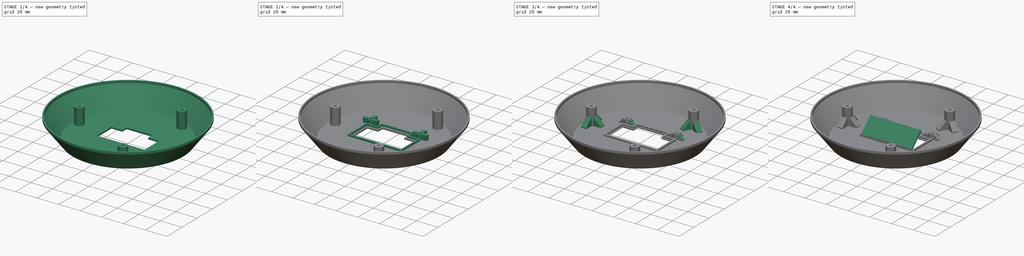
[diagram: build sequence overview — one tinted view per stage of 4, left to right]
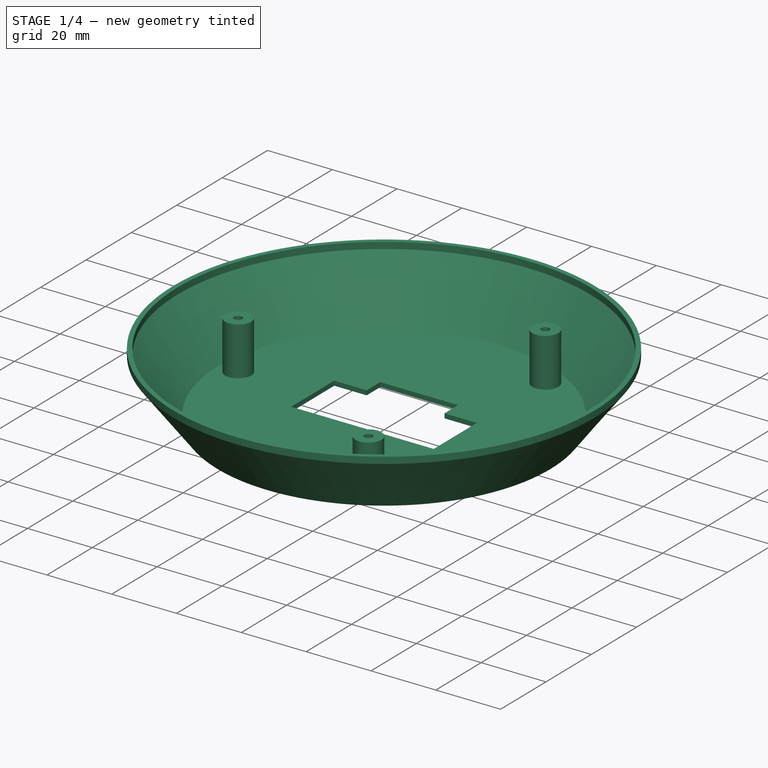
[diagram: stage 1 of 4 — iso view after this stage's code; geometry added in this stage tinted green]
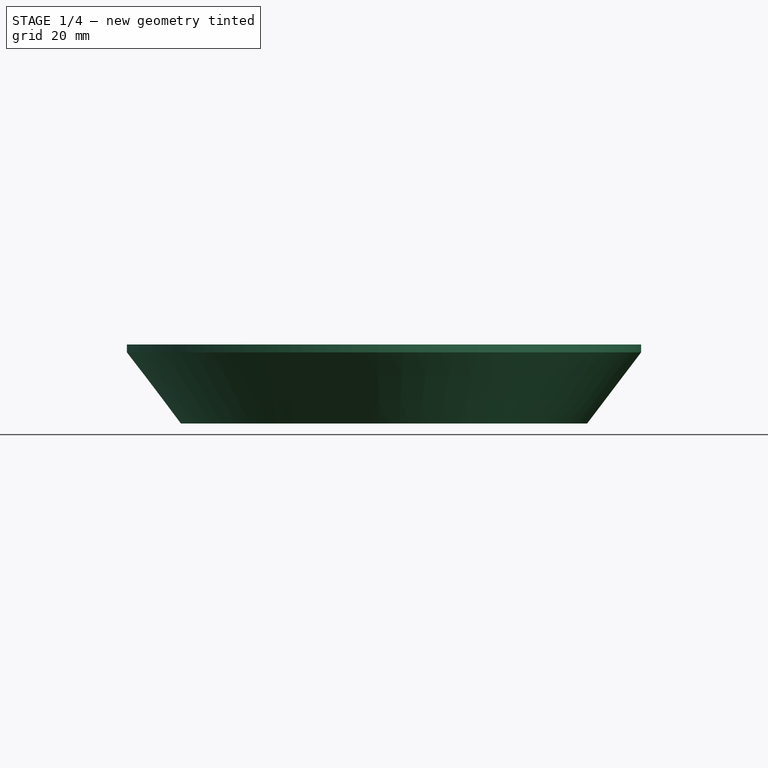
[diagram: stage 1 of 4 — front view after this stage's code; geometry added in this stage tinted green]
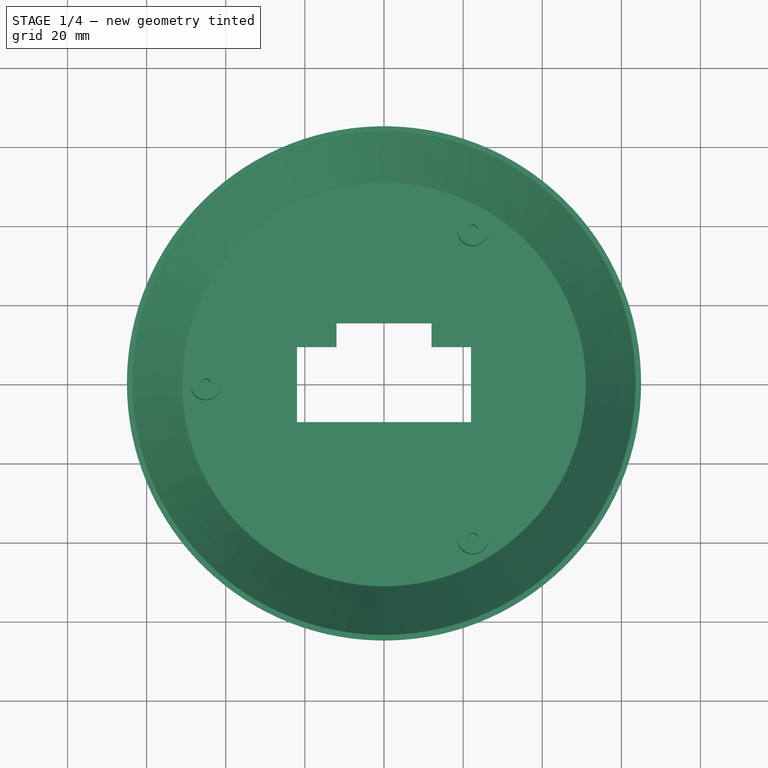
[diagram: stage 1 of 4 — top view after this stage's code; geometry added in this stage tinted green]
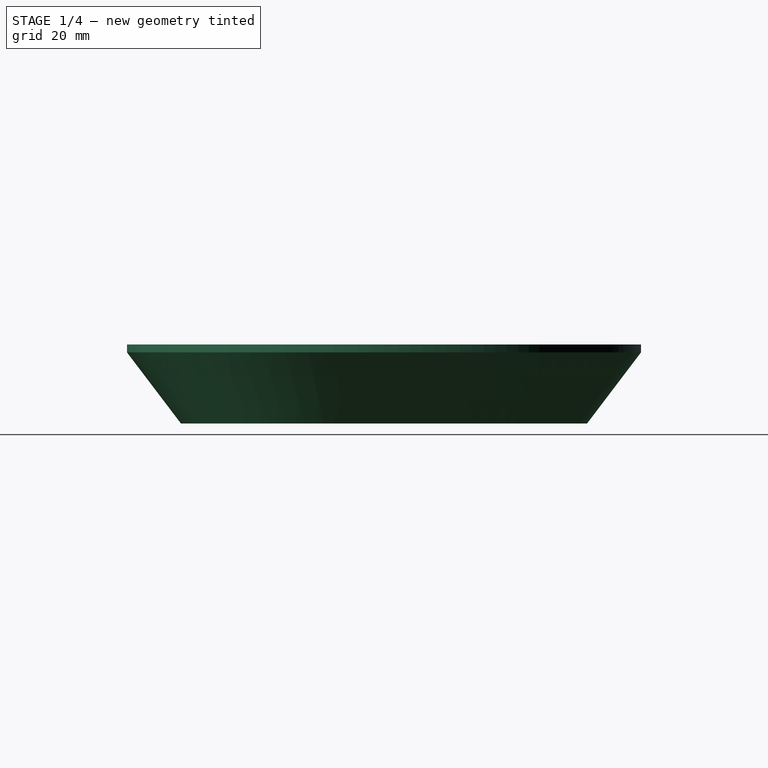
[diagram: stage 1 of 4 — right view after this stage's code; geometry added in this stage tinted green]
FCSTD DOCUMENT  (FreeCAD 0.19R24267 +148 (Git))
Label: Stevenson_screen_v2_top
License: All rights reserved
LicenseURL: http://en.wikipedia.org/wiki/All_rights_reserved
objects: Sketcher::SketchObject×8, PartDesign::Pad×6, PartDesign::Chamfer×5, PartDesign::Revolution×1, PartDesign::Pocket×1, PartDesign::Body×1
note: 35 computed .brp shape members not serialized (recipe doc carries the construction recipe); baked Part::Feature solids carry a one-line shape summary decoded from their .brp

FEATURE [Sketcher::SketchObject] Sketch
  FullyConstrained = true
  MapMode = 5
  Placement = pos=(0,0,0) rot=(1,0,0;1.5708rad)
  Support = -> [XZ_Plane]
  sketch-geometry (9):
    g0: LineSegment StartX=0 StartY=0 StartZ=0 EndX=51.3373 EndY=0 EndZ=0
    g1: LineSegment StartX=51.3373 StartY=0 StartZ=0 EndX=65 EndY=18 EndZ=0
    g2: LineSegment StartX=65 StartY=18 StartZ=0 EndX=65 EndY=20 EndZ=0
    g3: LineSegment StartX=65 StartY=20 StartZ=0 EndX=63.6 EndY=20 EndZ=0
    g4: LineSegment StartX=63.6 StartY=20 StartZ=0 EndX=63.6 EndY=18 EndZ=0
    g5: LineSegment StartX=63.6 StartY=18 StartZ=0 EndX=51 EndY=1.4 EndZ=0
    g6: LineSegment StartX=51 StartY=1.4 StartZ=0 EndX=0 EndY=1.4 EndZ=0
    g7: LineSegment StartX=0 StartY=1.4 StartZ=0 EndX=0 EndY=0 EndZ=0
    g8: LineSegment StartX=63.6 StartY=18 StartZ=0 EndX=65 EndY=18 EndZ=0
  constraints (25):
    c: Coincident(g0,g-1)
    c: Horizontal(g0)
    c: Coincident(g1,g0)
    c: Coincident(g2,g1)
    c: Vertical(g2)
    c: Coincident(g3,g2)
    c: Horizontal(g3)
    c: Coincident(g4,g3)
    c: Vertical(g4)
    c: Coincident(g5,g4)
    c: Coincident(g6,g5)
    c: PointOnObject(g6,g-2)
    c: Horizontal(g6)
    c: Coincident(g7,g6)
    c: Coincident(g7,g0)
    c: DistanceX(g6,g2) = 65
    c: DistanceY(g7,g7) = 1.4
    c: Equal(g3,g7)
    c: Parallel(g5,g1)
    c: DistanceY(g0,g2) = 20
    c: DistanceY(g2,g2) = 2
    c: Coincident(g8,g4)
    c: Coincident(g8,g1)
    c: Horizontal(g8)
    c: DistanceX(g6,g6) = 51
FEATURE [PartDesign::Revolution] Revolution
  Angle = 360
  Axis = (0,-2e-16,1)
  Base = (0,0,0)
  Placement = pos=(0,0,0) rot=(1,0,0;1.5708rad)
  Profile = -> Sketch
  ReferenceAxis = -> Sketch [V_Axis]
  Reversed = true
FEATURE [Sketcher::SketchObject] Sketch002
  FullyConstrained = true
  MapMode = 5
  Placement = pos=(0,1e-15,1.4) rot=(0,0,1;3.14159rad)
  sketch-geometry (9):
    g0: Circle CenterX=45 CenterY=0 CenterZ=0 NormalX=0 NormalY=0 NormalZ=1 AngleXU=0 Radius=1.25
    g1: Circle CenterX=-22.5 CenterY=38.9711 CenterZ=0 NormalX=0 NormalY=0 NormalZ=1 AngleXU=0 Radius=1.25
    g2: Circle CenterX=-22.5 CenterY=-38.9711 CenterZ=0 NormalX=0 NormalY=0 NormalZ=1 AngleXU=0 Radius=1.25
    g3: Circle CenterX=-22.5 CenterY=38.9711 CenterZ=0 NormalX=0 NormalY=0 NormalZ=1 AngleXU=0 Radius=4
    g4: Circle CenterX=45 CenterY=0 CenterZ=0 NormalX=0 NormalY=0 NormalZ=1 AngleXU=0 Radius=4
    g5: Circle CenterX=-22.5 CenterY=-38.9711 CenterZ=0 NormalX=0 NormalY=0 NormalZ=1 AngleXU=0 Radius=4
    g6: Circle CenterX=0 CenterY=0 CenterZ=0 NormalX=0 NormalY=0 NormalZ=1 AngleXU=0 Radius=45
    g7: LineSegment StartX=-22.5 StartY=-38.9711 StartZ=0 EndX=0 EndY=0 EndZ=0
    g8: LineSegment StartX=0 StartY=0 StartZ=0 EndX=-22.5 EndY=38.9711 EndZ=0
  constraints (21):
    c: Equal(g2,g1)
    c: Equal(g2,g0)
    c: Radius(g2) = 1.25
    c: Coincident(g3,g1)
    c: Coincident(g4,g0)
    c: Coincident(g5,g2)
    c: Equal(g3,g4)
    c: Equal(g3,g5)
    c: Radius(g3) = 4
    c: Coincident(g6,g-1)
    c: Radius(g6) = 45
    c: PointOnObject(g2,g6)
    c: PointOnObject(g0,g6)
    c: PointOnObject(g1,g6)
    c: PointOnObject(g0,g-1)
    c: Coincident(g7,g2)
    c: Coincident(g7,g-1)
    c: Coincident(g8,g1)
    c: Coincident(g8,g-1)
    c: Angle(g7,g-1) = 2.0944
    c: Angle(g-1,g8) = 2.0944
FEATURE [PartDesign::Pad] Pad
  BaseFeature = -> Revolution
  Direction = (1,1,1)
  Length = 15
  Length2 = 100
  Placement = pos=(0,0,0) rot=(1,0,0;1.5708rad)
  Profile = -> Sketch002
  Type = 0
FEATURE [Sketcher::SketchObject] Sketch003
  FullyConstrained = true
  MapMode = 5
  Placement = pos=(0,0,0) rot=(1,0,0;3.14159rad)
  Support = -> [Pad]
  sketch-geometry (8):
    g0: LineSegment StartX=-22 StartY=9.5 StartZ=0 EndX=22 EndY=9.5 EndZ=0
    g1: LineSegment StartX=22 StartY=9.5 StartZ=0 EndX=22 EndY=-9.5 EndZ=0
    g2: LineSegment StartX=22 StartY=-9.5 StartZ=0 EndX=12 EndY=-9.5 EndZ=0
    g3: LineSegment StartX=12 StartY=-9.5 StartZ=0 EndX=12 EndY=-15.5 EndZ=0
    g4: LineSegment StartX=12 StartY=-15.5 StartZ=0 EndX=-12 EndY=-15.5 EndZ=0
    g5: LineSegment StartX=-12 StartY=-15.5 StartZ=0 EndX=-12 EndY=-9.5 EndZ=0
    g6: LineSegment StartX=-12 StartY=-9.5 StartZ=0 EndX=-22 EndY=-9.5 EndZ=0
    g7: LineSegment StartX=-22 StartY=-9.5 StartZ=0 EndX=-22 EndY=9.5 EndZ=0
  constraints (24):
    c: Horizontal(g0)
    c: Coincident(g1,g0)
    c: Vertical(g1)
    c: Coincident(g2,g1)
    c: Horizontal(g2)
    c: Coincident(g3,g2)
    c: Vertical(g3)
    c: Coincident(g4,g3)
    c: Horizontal(g4)
    c: Coincident(g5,g4)
    c: Vertical(g5)
    c: Coincident(g6,g5)
    c: Horizontal(g6)
    c: Coincident(g7,g6)
    c: Coincident(g7,g0)
    c: Vertical(g7)
    c: DistanceX(g0,g0) = 44
    c: DistanceX(g0,g-1) = 22
    c: DistanceY(g1,g1) = 19
    c: Equal(g7,g1)
    c: DistanceY(g-1,g0) = 9.5
    c: DistanceY(g5,g5) = 6
    c: Equal(g6,g2)
    c: DistanceX(g2,g2) = 10
FEATURE [PartDesign::Pocket] Pocket
  BaseFeature = -> Pad
  Length = 1.5
  Length2 = 100
  Placement = pos=(0,0,0) rot=(1,0,0;1.5708rad)
  Profile = -> Sketch003
  Type = 0
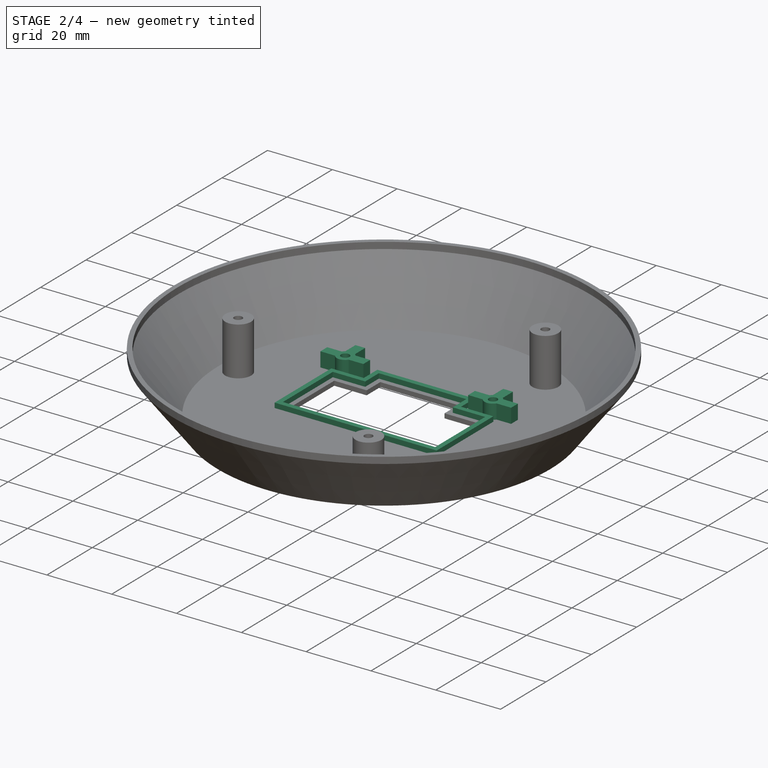
[diagram: stage 2 of 4 — iso view after this stage's code; geometry added in this stage tinted green]
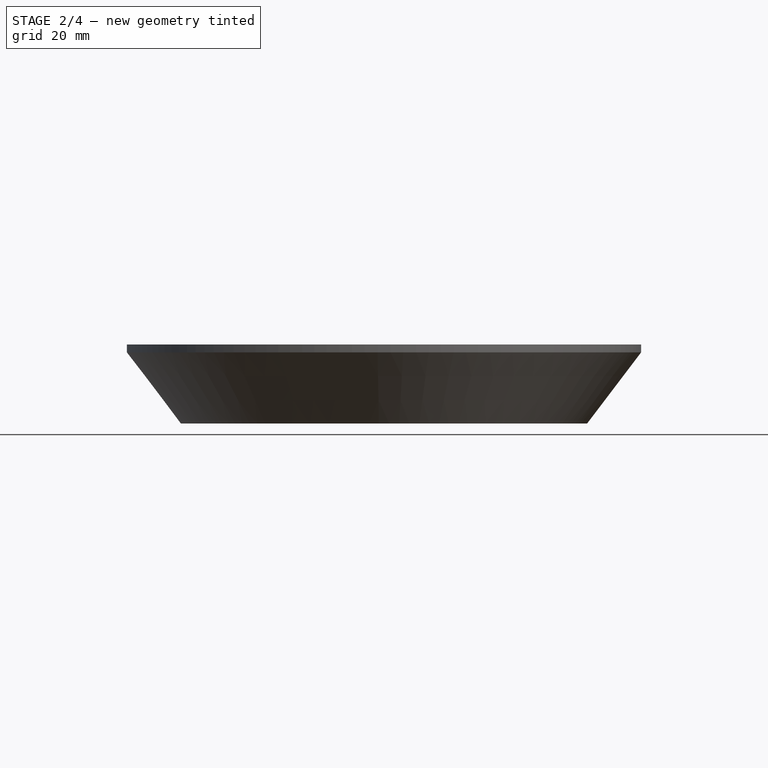
[diagram: stage 2 of 4 — front view after this stage's code; geometry added in this stage tinted green]
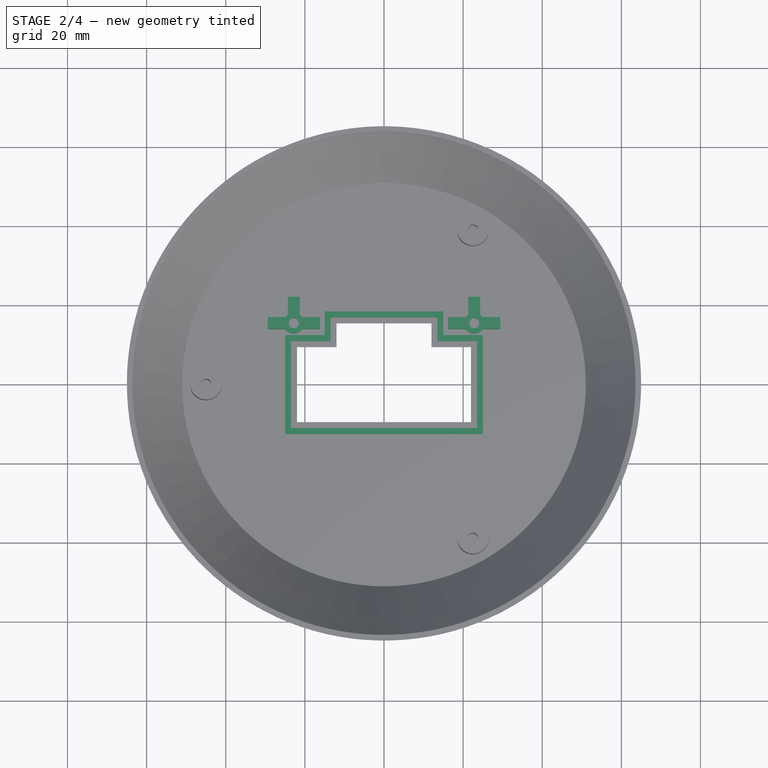
[diagram: stage 2 of 4 — top view after this stage's code; geometry added in this stage tinted green]
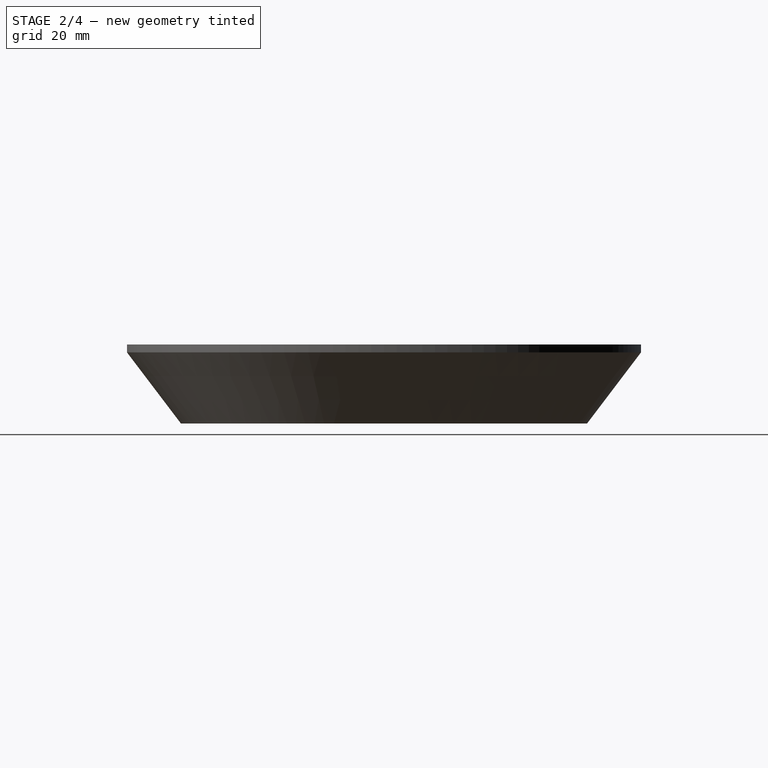
[diagram: stage 2 of 4 — right view after this stage's code; geometry added in this stage tinted green]
FEATURE [Sketcher::SketchObject] Sketch004
  FullyConstrained = true
  MapMode = 5
  Placement = pos=(0,-3e-16,1.4) rot=(0,0,1;3.14159rad)
  Support = -> [Pocket]
  sketch-geometry (16):
    g0: LineSegment StartX=-23.5 StartY=11 StartZ=0 EndX=23.5 EndY=11 EndZ=0
    g1: LineSegment StartX=23.5 StartY=11 StartZ=0 EndX=23.5 EndY=-11 EndZ=0
    g2: LineSegment StartX=23.5 StartY=-11 StartZ=0 EndX=13.5 EndY=-11 EndZ=0
    g3: LineSegment StartX=13.5 StartY=-11 StartZ=0 EndX=13.5 EndY=-17 EndZ=0
    g4: LineSegment StartX=13.5 StartY=-17 StartZ=0 EndX=-13.5 EndY=-17 EndZ=0
    g5: LineSegment StartX=-13.5 StartY=-17 StartZ=0 EndX=-13.5 EndY=-11 EndZ=0
    g6: LineSegment StartX=-13.5 StartY=-11 StartZ=0 EndX=-23.5 EndY=-11 EndZ=0
    g7: LineSegment StartX=-23.5 StartY=-11 StartZ=0 EndX=-23.5 EndY=11 EndZ=0
    g8: LineSegment StartX=-15 StartY=-18.5 StartZ=0 EndX=15 EndY=-18.5 EndZ=0
    g9: LineSegment StartX=15 StartY=-18.5 StartZ=0 EndX=15 EndY=-12.5 EndZ=0
    g10: LineSegment StartX=15 StartY=-12.5 StartZ=0 EndX=25 EndY=-12.5 EndZ=0
    g11: LineSegment StartX=25 StartY=-12.5 StartZ=0 EndX=25 EndY=12.5 EndZ=0
    g12: LineSegment StartX=25 StartY=12.5 StartZ=0 EndX=-25 EndY=12.5 EndZ=0
    g13: LineSegment StartX=-25 StartY=12.5 StartZ=0 EndX=-25 EndY=-12.5 EndZ=0
    g14: LineSegment StartX=-25 StartY=-12.5 StartZ=0 EndX=-15 EndY=-12.5 EndZ=0
    g15: LineSegment StartX=-15 StartY=-12.5 StartZ=0 EndX=-15 EndY=-18.5 EndZ=0
  constraints (48):
    c: Horizontal(g0)
    c: Coincident(g1,g0)
    c: Vertical(g1)
    c: Coincident(g2,g1)
    c: Horizontal(g2)
    c: Coincident(g3,g2)
    c: Vertical(g3)
    c: Coincident(g4,g3)
    c: Horizontal(g4)
    c: Coincident(g5,g4)
    c: Vertical(g5)
    c: Coincident(g6,g5)
    c: Horizontal(g6)
    c: Coincident(g7,g6)
    c: Coincident(g7,g0)
    c: Vertical(g7)
    c: Horizontal(g8)
    c: Coincident(g9,g8)
    c: Vertical(g9)
    c: Coincident(g10,g9)
    c: Horizontal(g10)
    c: Coincident(g11,g10)
    c: Vertical(g11)
    c: Coincident(g12,g11)
    c: Horizontal(g12)
    c: Coincident(g13,g12)
    c: Vertical(g13)
    c: Coincident(g14,g13)
    c: Horizontal(g14)
    c: Coincident(g15,g14)
    c: Coincident(g15,g8)
    c: Vertical(g15)
    c: DistanceX(g12,g12) = 50
    c: DistanceY(g13,g13) = 25
    c: DistanceX(g14,g14) = 10
    c: DistanceY(g1,g1) = 22
    c: DistanceX(g6,g1) = 47
    c: DistanceX(g13,g6) = 1.5
    c: DistanceY(g13,g6) = 1.5
    c: DistanceY(g1,g-1) = 11
    c: Equal(g5,g3)
    c: Equal(g14,g10)
    c: Equal(g3,g15)
    c: DistanceX(g-1,g1) = 23.5
    c: DistanceY(g9,g9) = 6
    c: Equal(g6,g2)
    c: Equal(g11,g13)
    c: Equal(g14,g6)
FEATURE [PartDesign::Pad] Pad001
  BaseFeature = -> Pocket
  Direction = (1,1,1)
  Length = 1.5
  Length2 = 100
  Placement = pos=(0,0,0) rot=(1,0,0;1.5708rad)
  Profile = -> Sketch004
  Type = 0
FEATURE [Sketcher::SketchObject] Sketch005
  FullyConstrained = true
  MapMode = 5
  Placement = pos=(0,-3e-16,1.4) rot=(0,0,1;3.14159rad)
  Support = -> [Pad001]
  sketch-geometry (5):
    g0: LineSegment StartX=-22.8 StartY=-15.5 StartZ=0 EndX=22.8 EndY=-15.5 EndZ=0
    g1: Circle CenterX=22.8 CenterY=-15.5 CenterZ=0 NormalX=0 NormalY=0 NormalZ=1 AngleXU=0 Radius=2.6
    g2: Circle CenterX=22.8 CenterY=-15.5 CenterZ=0 NormalX=0 NormalY=0 NormalZ=1 AngleXU=0 Radius=1.3
    g3: Circle CenterX=-22.8 CenterY=-15.5 CenterZ=0 NormalX=0 NormalY=0 NormalZ=1 AngleXU=0 Radius=2.6
    g4: Circle CenterX=-22.8 CenterY=-15.5 CenterZ=0 NormalX=0 NormalY=0 NormalZ=1 AngleXU=0 Radius=1.3
  constraints (12):
    c: Horizontal(g0)
    c: Coincident(g1,g0)
    c: Coincident(g2,g1)
    c: Coincident(g3,g0)
    c: Coincident(g4,g3)
    c: Equal(g3,g1)
    c: Equal(g4,g2)
    c: Radius(g1) = 2.6
    c: Radius(g2) = 1.3
    c: DistanceX(g3,g-1) = 22.8
    c: DistanceX(g0,g0) = 45.6
    c: DistanceY(g3,g-1) = 15.5
FEATURE [PartDesign::Pad] Pad002
  BaseFeature = -> Pad001
  Direction = (1,1,1)
  Length = 4.5
  Length2 = 100
  Placement = pos=(0,0,0) rot=(1,0,0;1.5708rad)
  Profile = -> Sketch005
  Type = 0
FEATURE [Sketcher::SketchObject] Sketch006
  FullyConstrained = true
  MapMode = 5
  Placement = pos=(0,-3e-16,1.4) rot=(0,0,1;3.14159rad)
  Support = -> [Pad002]
  sketch-geometry (25):
    g0: LineSegment StartX=-22.8 StartY=-15.5 StartZ=0 EndX=22.8 EndY=-15.5 EndZ=0
    g1: ArcOfCircle CenterX=-22.8 CenterY=-15.5 CenterZ=0 NormalX=0 NormalY=0 NormalZ=1 AngleXU=0 Radius=2.6 StartAngle=2.52664 EndAngle=3.75655
    g2: ArcOfCircle CenterX=22.8 CenterY=-15.5 CenterZ=0 NormalX=0 NormalY=0 NormalZ=1 AngleXU=0 Radius=2.6 StartAngle=2.52664 EndAngle=3.75655
    g3: LineSegment StartX=-24.3 StartY=-17.6237 StartZ=0 EndX=-24.3 EndY=-22.1237 EndZ=0
    g4: LineSegment StartX=-24.3 StartY=-22.1237 StartZ=0 EndX=-21.3 EndY=-22.1237 EndZ=0
    g5: LineSegment StartX=-21.3 StartY=-22.1237 StartZ=0 EndX=-21.3 EndY=-17.6237 EndZ=0
    g6: LineSegment StartX=-20.6763 StartY=-17 StartZ=0 EndX=-16.1763 EndY=-17 EndZ=0
    g7: LineSegment StartX=-16.1763 StartY=-17 StartZ=0 EndX=-16.1763 EndY=-14 EndZ=0
    g8: LineSegment StartX=-16.1763 StartY=-14 StartZ=0 EndX=-20.6763 EndY=-14 EndZ=0
    g9: LineSegment StartX=-24.9237 StartY=-14 StartZ=0 EndX=-29.4237 EndY=-14 EndZ=0
    g10: LineSegment StartX=-29.4237 StartY=-14 StartZ=0 EndX=-29.4237 EndY=-17 EndZ=0
    g11: LineSegment StartX=-29.4237 StartY=-17 StartZ=0 EndX=-24.9237 EndY=-17 EndZ=0
    g12: LineSegment StartX=24.9237 StartY=-14 StartZ=0 EndX=29.4237 EndY=-14 EndZ=0
    g13: LineSegment StartX=29.4237 StartY=-14 StartZ=0 EndX=29.4237 EndY=-17 EndZ=0
    g14: LineSegment StartX=29.4237 StartY=-17 StartZ=0 EndX=24.9237 EndY=-17 EndZ=0
    g15: LineSegment StartX=24.3 StartY=-17.6237 StartZ=0 EndX=24.3 EndY=-22.1237 EndZ=0
    g16: LineSegment StartX=24.3 StartY=-22.1237 StartZ=0 EndX=21.3 EndY=-22.1237 EndZ=0
    g17: LineSegment StartX=21.3 StartY=-22.1237 StartZ=0 EndX=21.3 EndY=-17.6237 EndZ=0
    g18: LineSegment StartX=20.6763 StartY=-14 StartZ=0 EndX=16.1763 EndY=-14 EndZ=0
    g19: LineSegment StartX=16.1763 StartY=-14 StartZ=0 EndX=16.1763 EndY=-17 EndZ=0
    g20: LineSegment StartX=16.1763 StartY=-17 StartZ=0 EndX=20.6763 EndY=-17 EndZ=0
    g21: ArcOfCircle CenterX=-22.8 CenterY=-15.5 CenterZ=0 NormalX=0 NormalY=0 NormalZ=1 AngleXU=0 Radius=2.6 StartAngle=4.09743 EndAngle=5.32735
    g22: ArcOfCircle CenterX=-22.8 CenterY=-15.5 CenterZ=0 NormalX=0 NormalY=0 NormalZ=1 AngleXU=0 Radius=2.6 StartAngle=5.66823 EndAngle=6.89814
    g23: ArcOfCircle CenterX=22.8 CenterY=-15.5 CenterZ=0 NormalX=0 NormalY=0 NormalZ=1 AngleXU=0 Radius=2.6 StartAngle=4.09743 EndAngle=5.32735
    g24: ArcOfCircle CenterX=22.8 CenterY=-15.5 CenterZ=0 NormalX=0 NormalY=0 NormalZ=1 AngleXU=0 Radius=2.6 StartAngle=5.66823 EndAngle=6.89814
  constraints (80):
    c: Horizontal(g0)
    c: DistanceX(g0,g0) = 45.6
    c: DistanceY(g0,g-1) = 15.5
    c: DistanceX(g0,g-1) = 22.8
    c: Coincident(g1,g0)
    c: Coincident(g2,g0)
    c: Equal(g1,g2)
    c: Radius(g1) = 2.6
    c: Vertical(g3)
    c: Coincident(g4,g3)
    c: Horizontal(g4)
    c: Coincident(g5,g4)
    c: PointOnObject(g5,g1)
    c: Vertical(g5)
    c: PointOnObject(g6,g1)
    c: Horizontal(g6)
    c: Coincident(g7,g6)
    c: Vertical(g7)
    c: Coincident(g8,g7)
    c: Horizontal(g8)
    c: Coincident(g10,g9)
    c: Vertical(g10)
    c: Coincident(g11,g10)
    c: Horizontal(g11)
    c: Horizontal(g9)
    c: Horizontal(g12)
    c: Coincident(g13,g12)
    c: Vertical(g13)
    c: Coincident(g14,g13)
    c: PointOnObject(g14,g2)
    c: PointOnObject(g15,g2)
    c: Vertical(g15)
    c: Coincident(g16,g15)
    c: Horizontal(g16)
    c: Coincident(g17,g16)
    c: Vertical(g17)
    c: Horizontal(g14)
    c: Horizontal(g18)
    c: Coincident(g19,g18)
    c: Vertical(g19)
    c: Coincident(g20,g19)
    c: Horizontal(g20)
    c: Equal(g20,g14)
    c: Equal(g14,g12)
    c: Equal(g12,g18)
    c: Equal(g18,g17)
    c: Equal(g17,g15)
    c: Equal(g15,g9)
    c: Equal(g9,g11)
    c: Equal(g11,g6)
    c: Equal(g6,g8)
    c: Equal(g8,g5)
    c: Equal(g5,g3)
    c: Equal(g10,g4)
    c: Equal(g4,g7)
    c: Equal(g7,g13)
    c: Equal(g13,g16)
    c: Equal(g16,g19)
    c: DistanceY(g5,g5) = 4.5
    c: DistanceX(g4,g4) = 3
    c: Coincident(g1,g9)
    c: Coincident(g22,g8)
    c: Equal(g1,g21)
    c: Coincident(g1,g11)
    c: Coincident(g21,g3)
    c: Coincident(g1,g21)
    c: Equal(g21,g22)
    c: PointOnObject(g21,g5)
    c: PointOnObject(g22,g6)
    c: Coincident(g21,g22)
    c: Coincident(g2,g18)
    c: Coincident(g24,g12)
    c: Equal(g2,g23)
    c: Coincident(g2,g20)
    c: Coincident(g23,g17)
    c: Coincident(g2,g23)
    c: Equal(g23,g24)
    c: PointOnObject(g23,g15)
    c: PointOnObject(g24,g14)
    c: Coincident(g23,g24)
FEATURE [PartDesign::Pad] Pad003
  BaseFeature = -> Pad002
  Direction = (1,1,1)
  Length = 4.5
  Length2 = 100
  Placement = pos=(0,0,0) rot=(1,0,0;1.5708rad)
  Profile = -> Sketch006
  Type = 0
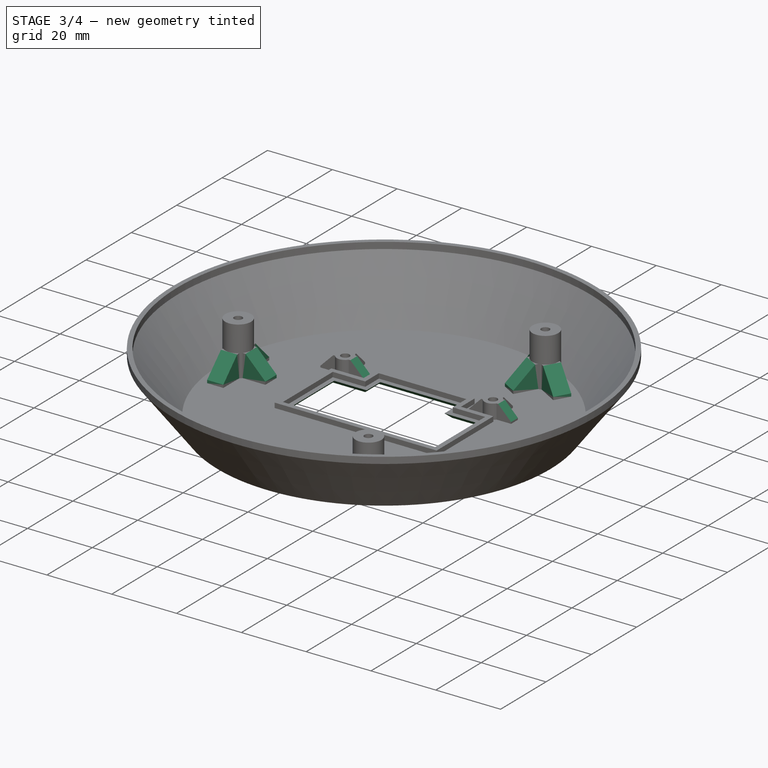
[diagram: stage 3 of 4 — iso view after this stage's code; geometry added in this stage tinted green]
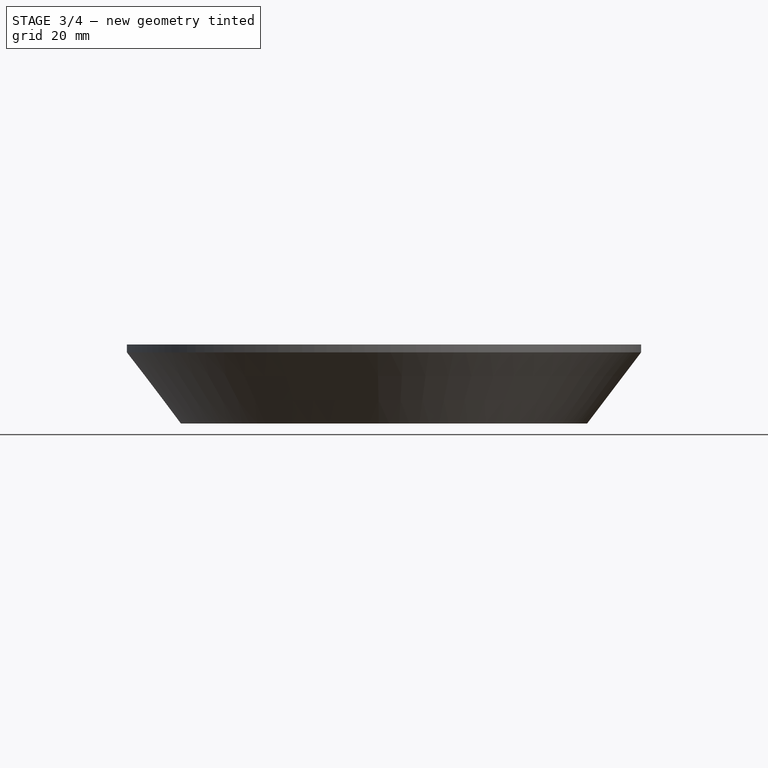
[diagram: stage 3 of 4 — front view after this stage's code; geometry added in this stage tinted green]
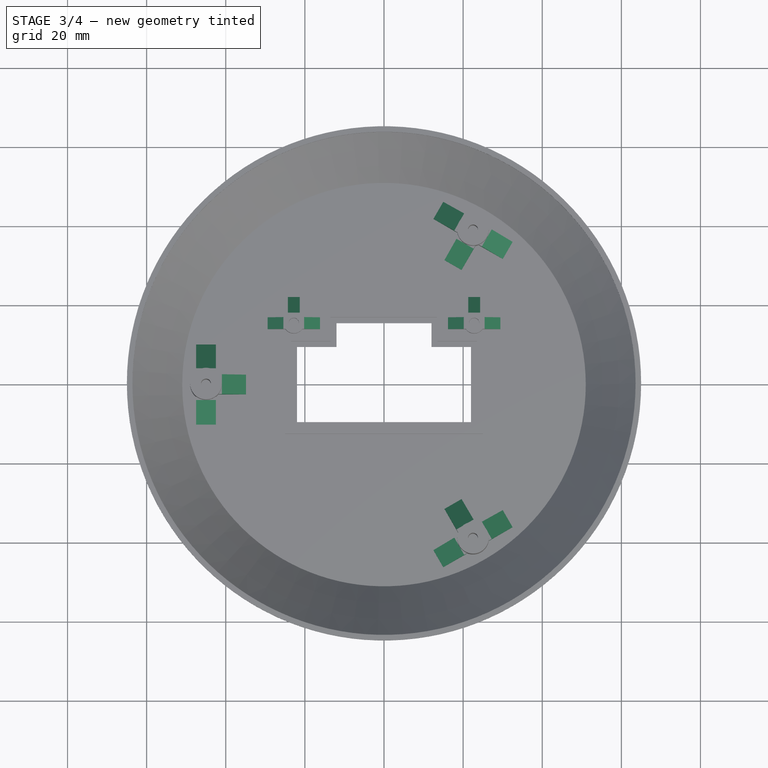
[diagram: stage 3 of 4 — top view after this stage's code; geometry added in this stage tinted green]
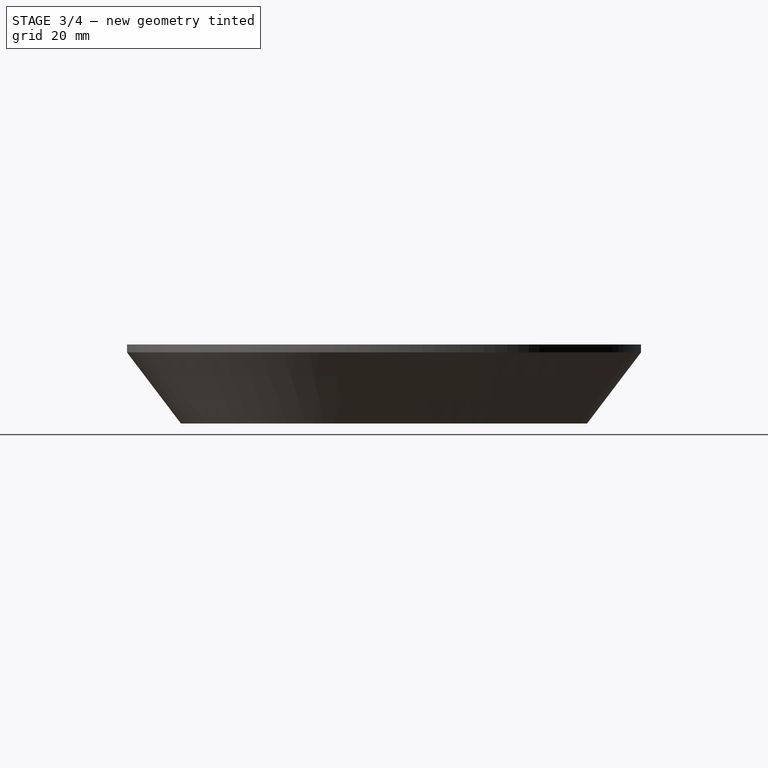
[diagram: stage 3 of 4 — right view after this stage's code; geometry added in this stage tinted green]
FEATURE [Sketcher::SketchObject] Sketch007
  FullyConstrained = false
  MapMode = 5
  Placement = pos=(0,-3e-16,1.4) rot=(0,0,1;3.14159rad)
  Support = -> [Pad003]
  sketch-geometry (41):
    g0: LineSegment StartX=0 StartY=0 StartZ=0 EndX=-22.5 EndY=38.9711 EndZ=0
    g1: LineSegment StartX=0 StartY=0 StartZ=0 EndX=-22.5 EndY=-38.9711 EndZ=0
    g2: LineSegment StartX=0 StartY=0 StartZ=0 EndX=45 EndY=0 EndZ=0
    g3: ArcOfCircle CenterX=-22.5 CenterY=38.9711 CenterZ=0 NormalX=0 NormalY=0 NormalZ=1 AngleXU=0 Radius=4 StartAngle=2.99006 EndAngle=4.34032
    g4: ArcOfCircle CenterX=45 CenterY=0 CenterZ=0 NormalX=0 NormalY=0 NormalZ=1 AngleXU=0 Radius=4 StartAngle=0.895665 EndAngle=2.24593
    g5: ArcOfCircle CenterX=-22.5 CenterY=-38.9711 CenterZ=0 NormalX=0 NormalY=0 NormalZ=1 AngleXU=0 Radius=4 StartAngle=5.08445 EndAngle=6.43472
    g6: LineSegment StartX=-29.9699 StartY=34.6584 StartZ=0 EndX=-14.1226 EndY=43.8078 EndZ=0
    g7: LineSegment StartX=-32.7213 StartY=-33.0699 StartZ=0 EndX=-11.645 EndY=-45.2383 EndZ=0
    g8: LineSegment StartX=-21.0458 StartY=42.6975 StartZ=0 EndX=-14.9837 EndY=46.1975 EndZ=0
    g9: LineSegment StartX=-14.9837 StartY=46.1975 StartZ=0 EndX=-12.4837 EndY=41.8673 EndZ=0
    g10: LineSegment StartX=-12.4837 StartY=41.8673 StartZ=0 EndX=-18.5458 EndY=38.3673 EndZ=0
    g11: LineSegment StartX=-26.4542 StartY=39.575 StartZ=0 EndX=-32.5163 EndY=36.075 EndZ=0
    g12: LineSegment StartX=-32.5163 StartY=36.075 StartZ=0 EndX=-30.0163 EndY=31.7448 EndZ=0
    g13: LineSegment StartX=-30.0163 StartY=31.7448 StartZ=0 EndX=-23.9542 EndY=35.2448 EndZ=0
    g14: LineSegment StartX=-23.1038 StartY=35.017 StartZ=0 EndX=-19.6038 EndY=28.9548 EndZ=0
    g15: LineSegment StartX=-19.6038 StartY=28.9548 StartZ=0 EndX=-15.2737 EndY=31.4548 EndZ=0
    g16: LineSegment StartX=-15.2737 StartY=31.4548 StartZ=0 EndX=-18.7737 EndY=37.517 EndZ=0
    g17: LineSegment StartX=-23.1038 StartY=-35.017 StartZ=0 EndX=-19.6038 EndY=-28.9548 EndZ=0
    g18: LineSegment StartX=-19.6038 StartY=-28.9548 StartZ=0 EndX=-15.2737 EndY=-31.4548 EndZ=0
    g19: LineSegment StartX=-15.2737 StartY=-31.4548 StartZ=0 EndX=-18.7737 EndY=-37.517 EndZ=0
    g20: LineSegment StartX=-23.9542 StartY=-35.2448 StartZ=0 EndX=-30.0163 EndY=-31.7448 EndZ=0
    g21: LineSegment StartX=-30.0163 StartY=-31.7448 StartZ=0 EndX=-32.5163 EndY=-36.075 EndZ=0
    g22: LineSegment StartX=-32.5163 StartY=-36.075 StartZ=0 EndX=-26.4542 EndY=-39.575 EndZ=0
    g23: LineSegment StartX=-18.5458 StartY=-38.3673 StartZ=0 EndX=-12.4837 EndY=-41.8673 EndZ=0
    g24: LineSegment StartX=-12.4837 StartY=-41.8673 StartZ=0 EndX=-14.9837 EndY=-46.1975 EndZ=0
    g25: LineSegment StartX=-14.9837 StartY=-46.1975 StartZ=0 EndX=-21.0458 EndY=-42.6975 EndZ=0
    g26: LineSegment StartX=41.8775 StartY=2.5 StartZ=0 EndX=34.8775 EndY=2.5 EndZ=0
    g27: LineSegment StartX=34.8775 StartY=2.5 StartZ=0 EndX=34.8775 EndY=-2.5 EndZ=0
    g28: LineSegment StartX=34.8775 StartY=-2.5 StartZ=0 EndX=41.8775 EndY=-2.5 EndZ=0
    g29: LineSegment StartX=42.5 StartY=3.1225 StartZ=0 EndX=42.5 EndY=10.1225 EndZ=0
    g30: LineSegment StartX=42.5 StartY=10.1225 StartZ=0 EndX=47.5 EndY=10.1225 EndZ=0
    g31: LineSegment StartX=47.5 StartY=10.1225 StartZ=0 EndX=47.5 EndY=3.1225 EndZ=0
    g32: LineSegment StartX=42.5 StartY=-3.1225 StartZ=0 EndX=42.5 EndY=-10.1225 EndZ=0
    g33: LineSegment StartX=42.5 StartY=-10.1225 StartZ=0 EndX=47.5 EndY=-10.1225 EndZ=0
    g34: LineSegment StartX=47.5 StartY=-10.1225 StartZ=0 EndX=47.5 EndY=-3.1225 EndZ=0
    g35: ArcOfCircle CenterX=-22.5 CenterY=38.9711 CenterZ=0 NormalX=0 NormalY=0 NormalZ=1 AngleXU=0 Radius=4 StartAngle=6.13165 EndAngle=7.48192
    g36: ArcOfCircle CenterX=-22.5 CenterY=38.9711 CenterZ=0 NormalX=0 NormalY=0 NormalZ=1 AngleXU=0 Radius=4 StartAngle=4.56086 EndAngle=5.91112
    g37: ArcOfCircle CenterX=-22.5 CenterY=-38.9711 CenterZ=0 NormalX=0 NormalY=0 NormalZ=1 AngleXU=0 Radius=4 StartAngle=1.94286 EndAngle=3.29313
    g38: ArcOfCircle CenterX=-22.5 CenterY=-38.9711 CenterZ=0 NormalX=0 NormalY=0 NormalZ=1 AngleXU=0 Radius=4 StartAngle=0.372066 EndAngle=1.72233
    g39: ArcOfCircle CenterX=45 CenterY=0 CenterZ=0 NormalX=0 NormalY=0 NormalZ=1 AngleXU=0 Radius=4 StartAngle=2.46646 EndAngle=3.81672
    g40: ArcOfCircle CenterX=45 CenterY=0 CenterZ=0 NormalX=0 NormalY=0 NormalZ=1 AngleXU=0 Radius=4 StartAngle=4.03726 EndAngle=5.38752
  constraints (123):
    c: Coincident(g0,g-1)
    c: Coincident(g1,g-1)
    c: Coincident(g2,g-1)
    c: PointOnObject(g2,g-1)
    c: Equal(g0,g2)
    c: Equal(g2,g1)
    c: Angle(g2,g0) = 2.0944
    c: Angle(g1,g2) = 2.0944
    c: DistanceX(g2,g2) = 45
    c: Coincident(g3,g0)
    c: Coincident(g4,g2)
    c: Coincident(g5,g1)
    c: Equal(g3,g5)
    c: Equal(g5,g4)
    c: Radius(g5) = 4
    c: PointOnObject(g3,g6)
    c: Perpendicular(g0,g6)
    c: PointOnObject(g5,g7)
    c: Perpendicular(g1,g7)
    c: Coincident(g9,g8)
    c: Coincident(g10,g9)
    c: Coincident(g12,g11)
    c: Coincident(g13,g12)
    c: Coincident(g15,g14)
    c: Coincident(g16,g15)
    c: Coincident(g18,g17)
    c: Coincident(g19,g18)
    c: Coincident(g21,g20)
    c: Coincident(g22,g21)
    c: Coincident(g24,g23)
    c: Coincident(g25,g24)
    c: Horizontal(g26)
    c: Coincident(g27,g26)
    c: Vertical(g27)
    c: Coincident(g28,g27)
    c: PointOnObject(g28,g4)
    c: Horizontal(g28)
    c: Vertical(g29)
    c: Coincident(g30,g29)
    c: Horizontal(g30)
    c: Coincident(g31,g30)
    c: Vertical(g31)
    c: PointOnObject(g32,g4)
    c: Vertical(g32)
    c: Coincident(g33,g32)
    c: Horizontal(g33)
    c: Coincident(g34,g33)
    c: Vertical(g34)
    c: Parallel(g11,g13)
    c: Parallel(g13,g6)
    c: Parallel(g6,g8)
    c: Parallel(g8,g10)
    c: Parallel(g14,g0)
    c: Parallel(g0,g16)
    c: Perpendicular(g11,g12)
    c: Perpendicular(g15,g14)
    c: Perpendicular(g9,g8)
    c: Parallel(g22,g7)
    c: Parallel(g7,g20)
    c: Parallel(g20,g23)
    c: Parallel(g23,g25)
    c: Perpendicular(g20,g21)
    c: Perpendicular(g18,g17)
    c: Perpendicular(g24,g23)
    c: Equal(g31,g29)
    c: Equal(g29,g32)
    c: Equal(g32,g34)
    c: Equal(g34,g28)
    c: Equal(g28,g26)
    c: Equal(g26,g22)
    c: Equal(g22,g20)
    c: Equal(g20,g23)
    c: Equal(g23,g25)
    c: Equal(g25,g19)
    c: Equal(g19,g17)
    c: Equal(g17,g11)
    c: Equal(g11,g13)
    c: Equal(g13,g14)
    c: Equal(g14,g16)
    c: Equal(g16,g10)
    c: Equal(g10,g8)
    c: Parallel(g19,g17)
    c: Equal(g12,g15)
    c: Equal(g15,g9)
    c: Equal(g9,g18)
    c: Equal(g18,g21)
    c: Equal(g21,g24)
    c: Equal(g24,g30)
    c: Equal(g30,g27)
    c: Equal(g27,g33)
    c: DistanceX(g28,g28) = 7
    c: DistanceY(g27,g27) = 5
    c: Parallel(g17,g1)
    c: Coincident(g3,g11)
    c: Coincident(g35,g8)
    c: Equal(g3,g35)
    c: Coincident(g36,g16)
    c: Coincident(g35,g10)
    c: Coincident(g3,g35)
    c: Equal(g3,g36)
    c: Coincident(g3,g13)
    c: Coincident(g36,g14)
    c: Coincident(g3,g36)
    c: Coincident(g5,g25)
    c: Coincident(g37,g22)
    c: Equal(g5,g37)
    c: Coincident(g38,g17)
    c: Coincident(g37,g20)
    c: Coincident(g5,g37)
    c: Equal(g5,g38)
    c: Coincident(g5,g23)
    c: Coincident(g38,g19)
    c: Coincident(g5,g38)
    c: Coincident(g4,g31)
    c: Coincident(g40,g34)
    c: Equal(g4,g39)
    c: Coincident(g4,g29)
    c: Coincident(g39,g26)
    c: Coincident(g4,g39)
    c: Equal(g39,g40)
    c: PointOnObject(g39,g28)
    c: PointOnObject(g40,g32)
    c: Coincident(g39,g40)
FEATURE [PartDesign::Pad] Pad004
  BaseFeature = -> Pad003
  Direction = (1,1,1)
  Length = 7
  Length2 = 100
  Placement = pos=(0,0,0) rot=(1,0,0;1.5708rad)
  Profile = -> Sketch007
  Type = 0
FEATURE [PartDesign::Chamfer] Chamfer
  Angle = 45
  Base = -> Pad004 [Edge265,Edge249,Edge270,Edge188,Edge193,Edge172,Edge243,Edge238,Edge233]
  BaseFeature = -> Pad004
  ChamferType = 0
  FlipDirection = false
  Placement = pos=(0,0,0) rot=(1,0,0;1.5708rad)
  Size = 6.1
  Size2 = 1
  SupportTransform = false
FEATURE [PartDesign::Chamfer] Chamfer001
  Angle = 45
  Base = -> Chamfer [Edge151,Edge167,Edge161,Edge99,Edge105,Edge115]
  BaseFeature = -> Chamfer
  ChamferType = 0
  FlipDirection = false
  Placement = pos=(0,0,0) rot=(1,0,0;1.5708rad)
  Size = 4
  Size2 = 1
  SupportTransform = false
FEATURE [PartDesign::Chamfer] Chamfer002
  Angle = 45
  Base = -> Chamfer001 [Edge324,Edge327,Edge331,Edge335,Edge339,Edge337,Edge333,Edge329]
  BaseFeature = -> Chamfer001
  ChamferType = 0
  FlipDirection = false
  Placement = pos=(0,0,0) rot=(1,0,0;1.5708rad)
  Size = 1.39
  Size2 = 1
  SupportTransform = false
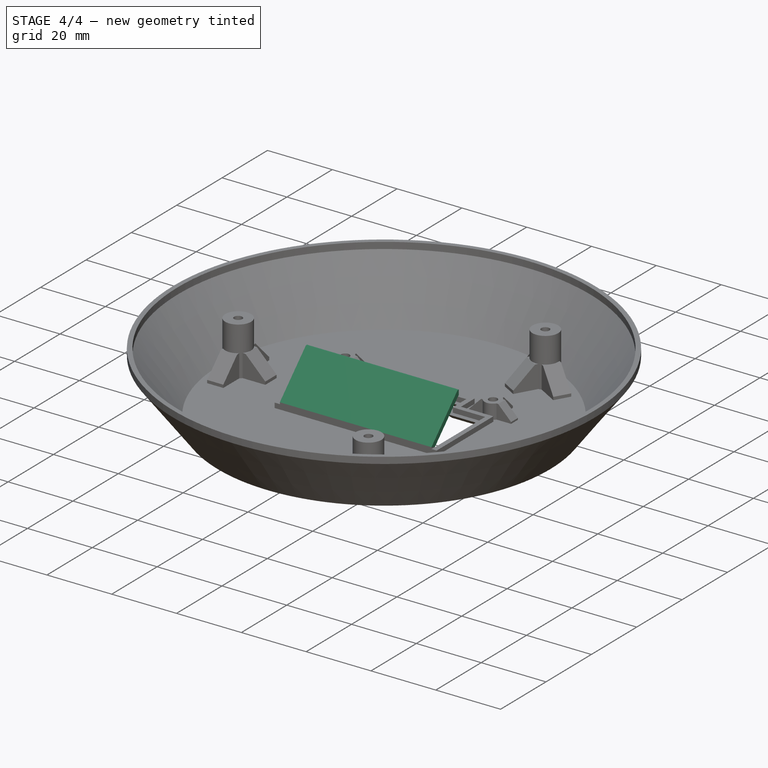
[diagram: stage 4 of 4 — iso view after this stage's code; geometry added in this stage tinted green]
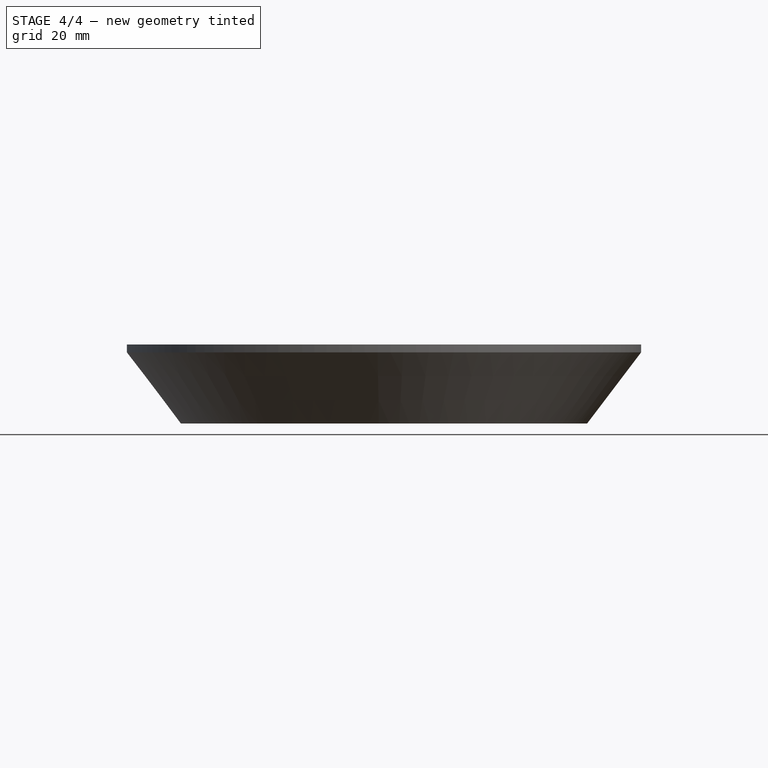
[diagram: stage 4 of 4 — front view after this stage's code; geometry added in this stage tinted green]
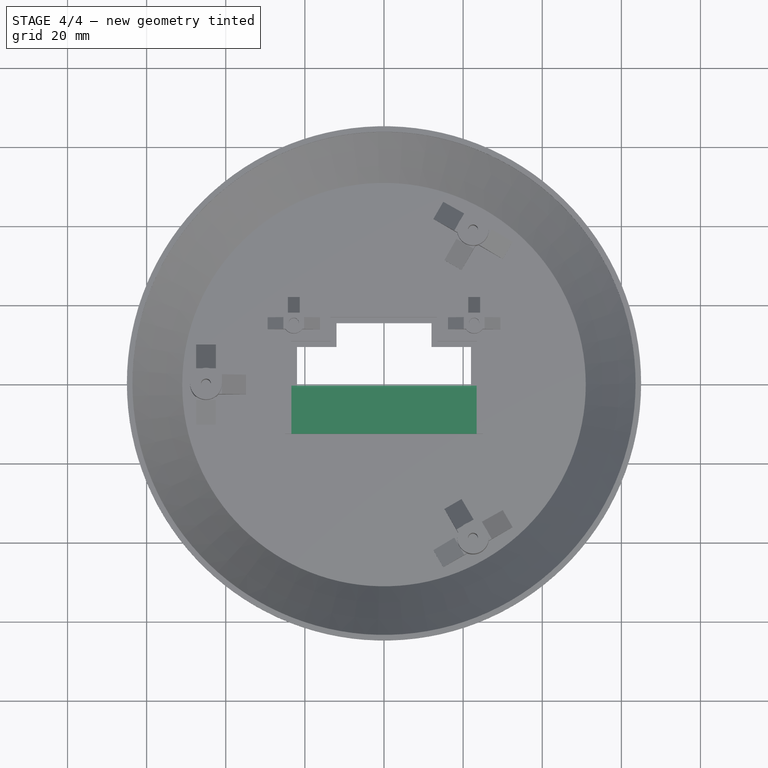
[diagram: stage 4 of 4 — top view after this stage's code; geometry added in this stage tinted green]
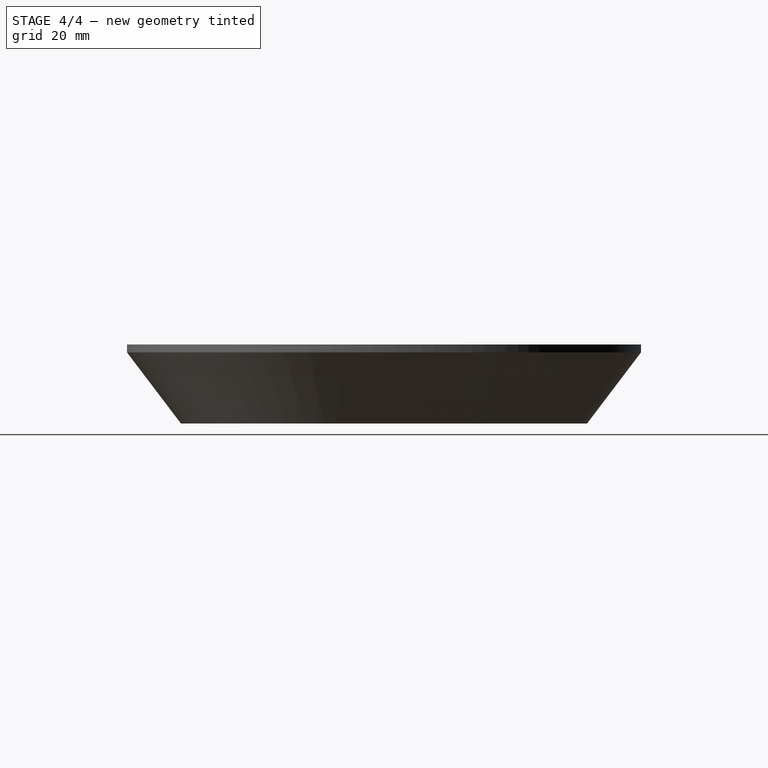
[diagram: stage 4 of 4 — right view after this stage's code; geometry added in this stage tinted green]
FEATURE [Sketcher::SketchObject] Sketch008
  FullyConstrained = true
  MapMode = 5
  Placement = pos=(0,-6e-16,2.9) rot=(0,0,1;3.14159rad)
  Support = -> [Chamfer002]
  sketch-geometry (4):
    g0: LineSegment StartX=-23.4 StartY=12.5 StartZ=0 EndX=23.4 EndY=12.5 EndZ=0
    g1: LineSegment StartX=23.4 StartY=12.5 StartZ=0 EndX=23.4 EndY=0.5 EndZ=0
    g2: LineSegment StartX=23.4 StartY=0.5 StartZ=0 EndX=-23.4 EndY=0.5 EndZ=0
    g3: LineSegment StartX=-23.4 StartY=0.5 StartZ=0 EndX=-23.4 EndY=12.5 EndZ=0
  constraints (12):
    c: Coincident(g0,g1)
    c: Coincident(g1,g2)
    c: Coincident(g2,g3)
    c: Coincident(g3,g0)
    c: Horizontal(g0)
    c: Horizontal(g2)
    c: Vertical(g1)
    c: Vertical(g3)
    c: DistanceY(g-1,g0) = 12.5
    c: DistanceY(g3,g3) = 12
    c: DistanceX(g0,g0) = 46.8
    c: DistanceX(g0,g-1) = 23.4
FEATURE [PartDesign::Pad] Pad005
  BaseFeature = -> Chamfer002
  Direction = (1,1,1)
  Length = 12
  Length2 = 100
  Placement = pos=(0,0,0) rot=(1,0,0;1.5708rad)
  Profile = -> Sketch008
  Type = 0
FEATURE [PartDesign::Chamfer] Chamfer003
  Angle = 45
  Base = -> Pad005 [Edge82]
  BaseFeature = -> Pad005
  ChamferType = 0
  FlipDirection = false
  Placement = pos=(0,0,0) rot=(1,0,0;1.5708rad)
  Size = 10.49
  Size2 = 1
  SupportTransform = false
FEATURE [PartDesign::Chamfer] Chamfer004
  Angle = 45
  Base = -> Chamfer003 [Edge22]
  BaseFeature = -> Chamfer003
  ChamferType = 0
  FlipDirection = false
  Placement = pos=(0,0,0) rot=(1,0,0;1.5708rad)
  Size = 11.49
  Size2 = 1
  SupportTransform = false
FEATURE [PartDesign::Body] Body
  Group = -> [Sketch,Revolution,Sketch002,Pad,Sketch003,Pocket,Sketch004,Pad001,Sketch005,Pad002,Sketch006,Pad003,Sketch007,Pad004,Chamfer,Chamfer001,Chamfer002,Sketch008,Pad005,Chamfer003,Chamfer004]
  Origin = -> Origin
  Tip = -> Chamfer004
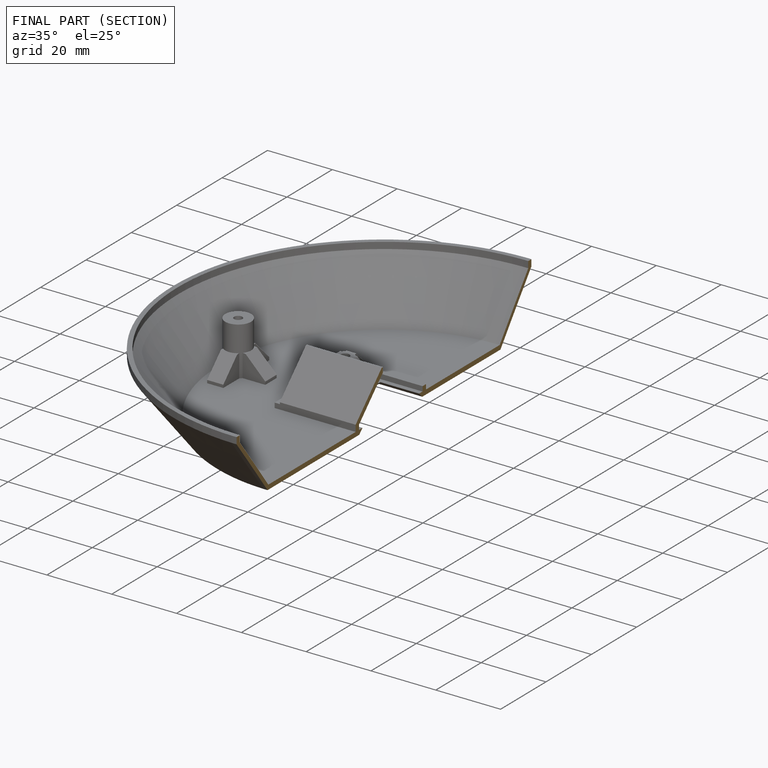
[diagram: finished part — half-section view (interior)]
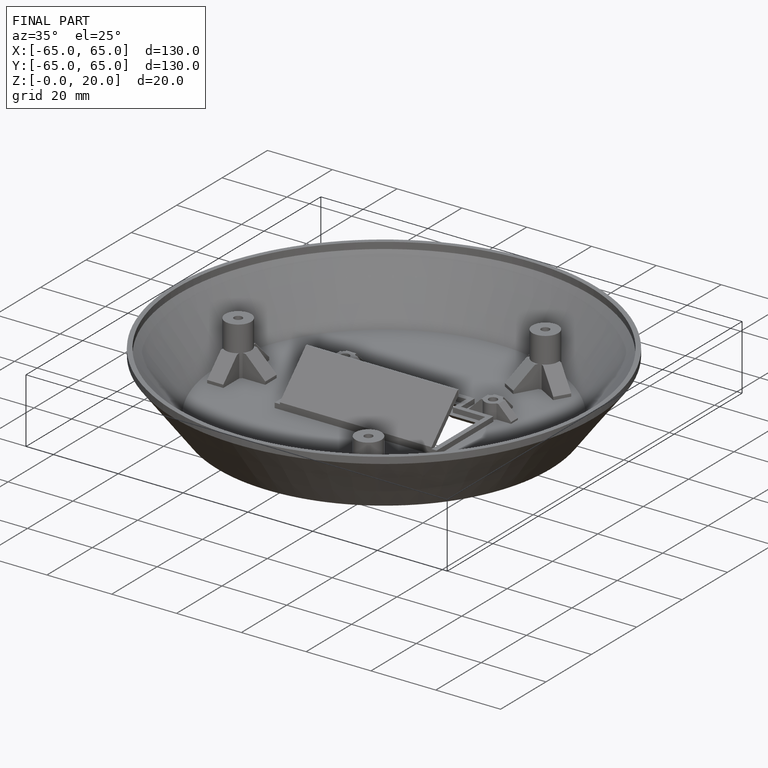
[diagram: finished part — iso view with bounding-box wireframe]
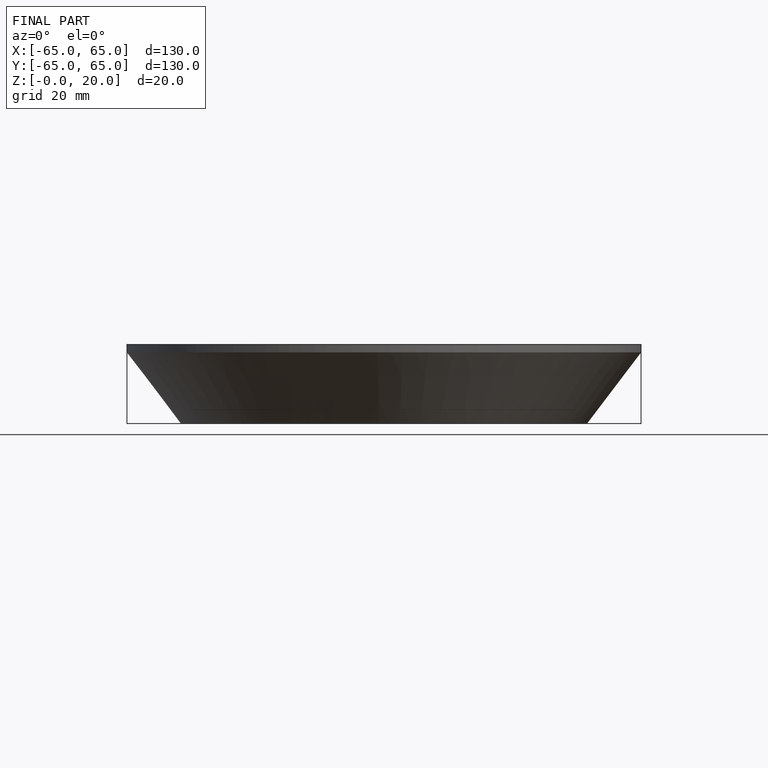
[diagram: finished part — front view with bounding-box wireframe]
